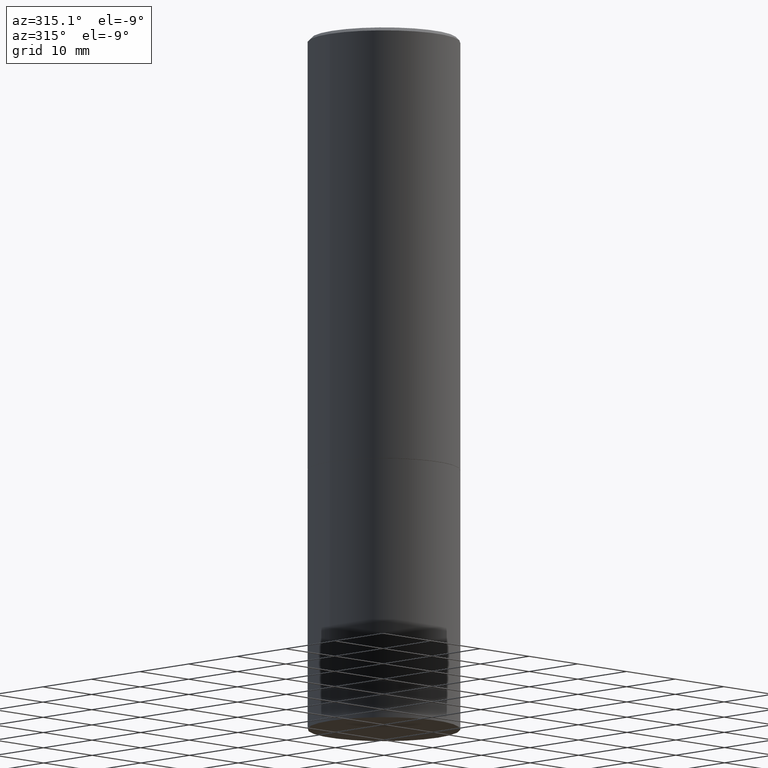
[diagram: clean part render]
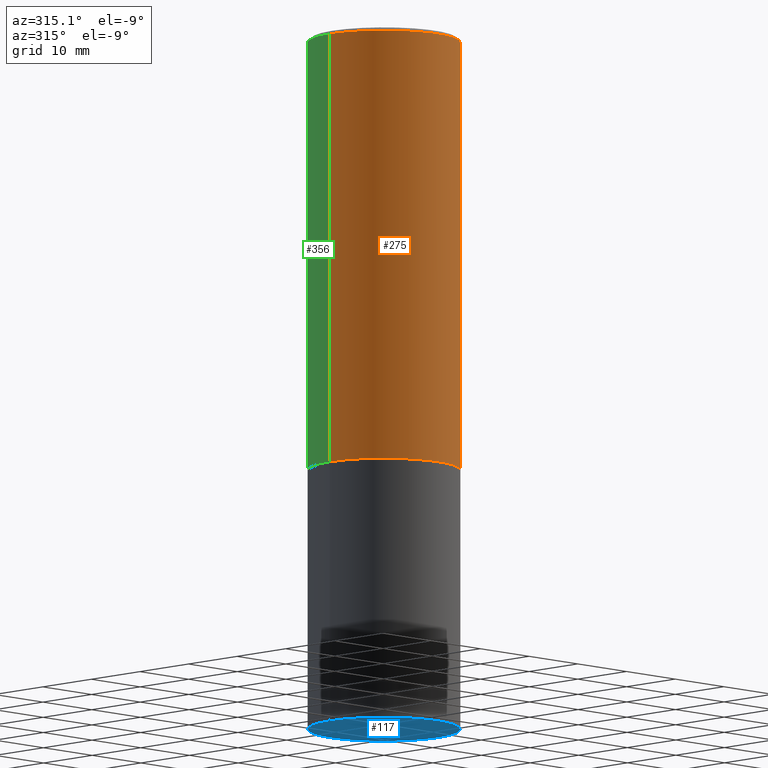
[diagram: same view with three faces highlighted in distinct colors, each labeled with its STEP entity id]
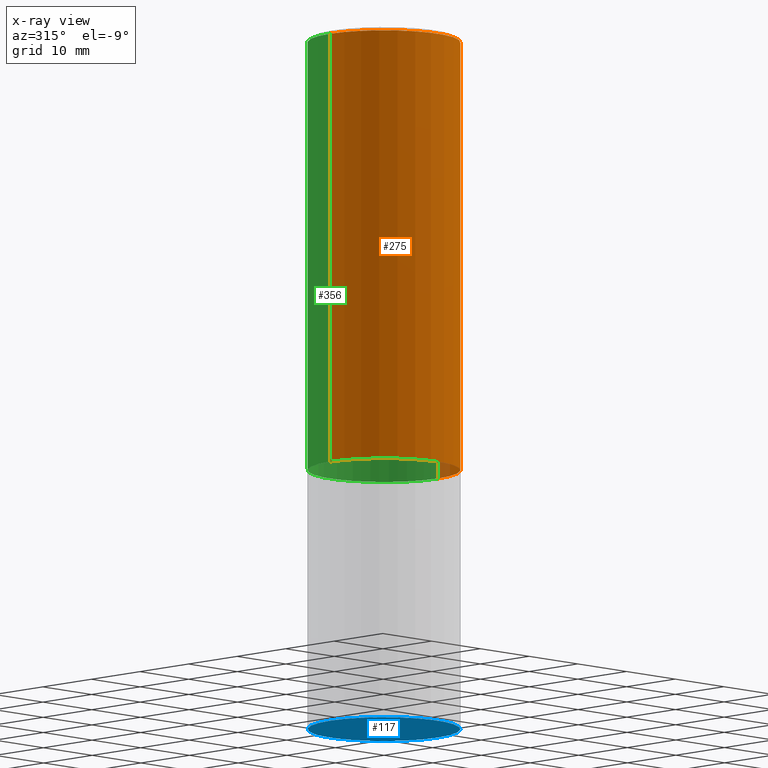
[diagram: x-ray of the same camera — body ghosted, the three highlighted faces saturated]
A machine part, auxiliary view with three faces highlighted in distinct colors.
The next image is the same camera in x-ray (body ghosted, the three faces saturated) — at least one of them is partly hidden behind the body in this view.
Their STEP definitions:

[orange] entity #275 — the highlighted cylindrical surface (partial cylindrical patch) has radius 11.1125 mm, axis along (-0, 0, 1).
#3 = DIRECTION ( 'NONE',  ( -2.445468806185136597E-29, 3.491481338843145583E-15, 1.000000000000000000 ) ) ;
#5 = AXIS2_PLACEMENT_3D ( 'NONE', #123, #152, #31 ) ;
#12 = VERTEX_POINT ( 'NONE', #290 ) ;
#24 = CIRCLE ( 'NONE', #128, 0.4374999999999998335 ) ;
#31 = DIRECTION ( 'NONE',  ( 1.000000000000000000, -6.982962677686266711E-15, 0.000000000000000000 ) ) ;
#36 = CARTESIAN_POINT ( 'NONE',  ( 6.111226546656657010E-29, -8.725211865769021935E-15, -2.499000000000000110 ) ) ;
#46 = LINE ( 'NONE', #269, #295 ) ;
#60 = CYLINDRICAL_SURFACE ( 'NONE', #247, 0.4374999999999997780 ) ;
#61 = VERTEX_POINT ( 'NONE', #131 ) ;
#64 = CARTESIAN_POINT ( 'NONE',  ( 0.4374999999999998335, -1.178025803725676362E-14, -2.499000000000000110 ) ) ;
#67 = VERTEX_POINT ( 'NONE', #221 ) ;
#78 = CARTESIAN_POINT ( 'NONE',  ( 0.4374999999999997780, -3.055046171487740108E-15, 2.133327339410720928E-29 ) ) ;
#99 = EDGE_CURVE ( 'NONE', #255, #61, #333, .T. ) ;
#101 = DIRECTION ( 'NONE',  ( -2.445468806185136877E-29, 3.491481338843145188E-15, 1.000000000000000000 ) ) ;
#123 = CARTESIAN_POINT ( 'NONE',  ( 4.890937612370297681E-31, -6.982962677686324889E-17, -0.02000000000000009756 ) ) ;
#124 = EDGE_LOOP ( 'NONE', ( #355, #179, #287, #213 ) ) ;
#128 = AXIS2_PLACEMENT_3D ( 'NONE', #36, #346, #318 ) ;
#131 = CARTESIAN_POINT ( 'NONE',  ( 0.4374999999999997224, -3.071297500801906385E-15, -0.02000000000000009756 ) ) ;
#152 = DIRECTION ( 'NONE',  ( -2.445468806185136597E-29, 3.491481338843145583E-15, 1.000000000000000000 ) ) ;
#170 = EDGE_CURVE ( 'NONE', #12, #255, #24, .T. ) ;
#179 = ORIENTED_EDGE ( 'NONE', *, *, #170, .T. ) ;
#213 = ORIENTED_EDGE ( 'NONE', *, *, #256, .F. ) ;
#221 = CARTESIAN_POINT ( 'NONE',  ( -0.4374999999999997224, 2.985216544710876416E-15, -0.02000000000000009756 ) ) ;
#237 = FACE_OUTER_BOUND ( 'NONE', #124, .T. ) ;
#239 = DIRECTION ( 'NONE',  ( 1.000000000000000000, -6.982962677686266711E-15, 4.876176775795935793E-29 ) ) ;
#247 = AXIS2_PLACEMENT_3D ( 'NONE', #257, #3, #239 ) ;
#255 = VERTEX_POINT ( 'NONE', #64 ) ;
#256 = EDGE_CURVE ( 'NONE', #67, #61, #341, .T. ) ;
#257 = CARTESIAN_POINT ( 'NONE',  ( 0.000000000000000000, 0.000000000000000000, 0.000000000000000000 ) ) ;
#269 = CARTESIAN_POINT ( 'NONE',  ( -0.4374999999999997780, 3.108624468950436735E-15, -2.152034101986520123E-29 ) ) ;
#274 = DIRECTION ( 'NONE',  ( -2.445468806185136877E-29, 3.491481338843145188E-15, 1.000000000000000000 ) ) ;
#275 = ADVANCED_FACE ( 'NONE', ( #237 ), #60, .T. ) ;
#287 = ORIENTED_EDGE ( 'NONE', *, *, #99, .T. ) ;
#290 = CARTESIAN_POINT ( 'NONE',  ( -0.4374999999999998335, -1.288896277322503515E-15, -2.499000000000000110 ) ) ;
#295 = VECTOR ( 'NONE', #101, 39.37007874015748143 ) ;
#318 = DIRECTION ( 'NONE',  ( 1.000000000000000000, -6.982962677686267499E-15, 0.000000000000000000 ) ) ;
#333 = LINE ( 'NONE', #78, #345 ) ;
#341 = CIRCLE ( 'NONE', #5, 0.4374999999999997224 ) ;
#345 = VECTOR ( 'NONE', #274, 39.37007874015748143 ) ;
#346 = DIRECTION ( 'NONE',  ( -2.445468806185136597E-29, 3.491481338843145583E-15, 1.000000000000000000 ) ) ;
#355 = ORIENTED_EDGE ( 'NONE', *, *, #361, .F. ) ;
#361 = EDGE_CURVE ( 'NONE', #12, #67, #46, .T. ) ;

[blue] entity #117 — the highlighted planar face has unit normal (0, -0, -1).
#21 = DIRECTION ( 'NONE',  ( -1.000000000000000000, 6.982962677686265922E-15, -4.876176775795935793E-29 ) ) ;
#23 = EDGE_CURVE ( 'NONE', #236, #94, #259, .T. ) ;
#42 = DIRECTION ( 'NONE',  ( -2.445468806185136597E-29, 3.491481338843145583E-15, 1.000000000000000000 ) ) ;
#52 = PLANE ( 'NONE',  #312 ) ;
#58 = CARTESIAN_POINT ( 'NONE',  ( 0.4375000000000000000, -1.702097152686032402E-14, -4.000000000000000000 ) ) ;
#73 = CIRCLE ( 'NONE', #157, 0.4375000000000000000 ) ;
#88 = DIRECTION ( 'NONE',  ( 1.000000000000000000, -6.982962677686267499E-15, 0.000000000000000000 ) ) ;
#94 = VERTEX_POINT ( 'NONE', #224 ) ;
#117 = ADVANCED_FACE ( 'NONE', ( #250 ), #52, .T. ) ;
#151 = ORIENTED_EDGE ( 'NONE', *, *, #176, .F. ) ;
#157 = AXIS2_PLACEMENT_3D ( 'NONE', #208, #42, #88 ) ;
#167 = DIRECTION ( 'NONE',  ( 1.000000000000000000, -6.982962677686267499E-15, 0.000000000000000000 ) ) ;
#171 = CARTESIAN_POINT ( 'NONE',  ( 3.055046171487839110E-15, 0.4374999999999860667, -4.000000000000001776 ) ) ;
#176 = EDGE_CURVE ( 'NONE', #94, #236, #73, .T. ) ;
#208 = CARTESIAN_POINT ( 'NONE',  ( 9.781875224740546387E-29, -1.396592535537258233E-14, -4.000000000000000000 ) ) ;
#224 = CARTESIAN_POINT ( 'NONE',  ( -0.4375000000000000000, -8.238689882289784535E-15, -4.000000000000000000 ) ) ;
#227 = AXIS2_PLACEMENT_3D ( 'NONE', #335, #270, #167 ) ;
#236 = VERTEX_POINT ( 'NONE', #58 ) ;
#250 = FACE_OUTER_BOUND ( 'NONE', #366, .T. ) ;
#259 = CIRCLE ( 'NONE', #227, 0.4375000000000000000 ) ;
#270 = DIRECTION ( 'NONE',  ( -2.445468806185136597E-29, 3.491481338843145583E-15, 1.000000000000000000 ) ) ;
#276 = DIRECTION ( 'NONE',  ( 2.438088387897960049E-29, -3.491481338843145188E-15, -1.000000000000000000 ) ) ;
#292 = ORIENTED_EDGE ( 'NONE', *, *, #23, .F. ) ;
#312 = AXIS2_PLACEMENT_3D ( 'NONE', #171, #276, #21 ) ;
#335 = CARTESIAN_POINT ( 'NONE',  ( 9.781875224740546387E-29, -1.396592535537258233E-14, -4.000000000000000000 ) ) ;
#366 = EDGE_LOOP ( 'NONE', ( #292, #151 ) ) ;

[green] entity #356 — the highlighted cylindrical surface (partial cylindrical patch) has radius 11.1125 mm, axis along (-0, 0, 1).
#12 = VERTEX_POINT ( 'NONE', #290 ) ;
#39 = CARTESIAN_POINT ( 'NONE',  ( 4.890937612370297681E-31, -6.982962677686324889E-17, -0.02000000000000009756 ) ) ;
#46 = LINE ( 'NONE', #269, #295 ) ;
#61 = VERTEX_POINT ( 'NONE', #131 ) ;
#64 = CARTESIAN_POINT ( 'NONE',  ( 0.4374999999999998335, -1.178025803725676362E-14, -2.499000000000000110 ) ) ;
#67 = VERTEX_POINT ( 'NONE', #221 ) ;
#78 = CARTESIAN_POINT ( 'NONE',  ( 0.4374999999999997780, -3.055046171487740108E-15, 2.133327339410720928E-29 ) ) ;
#89 = EDGE_CURVE ( 'NONE', #255, #12, #251, .T. ) ;
#95 = DIRECTION ( 'NONE',  ( 1.000000000000000000, -6.982962677686266711E-15, 0.000000000000000000 ) ) ;
#99 = EDGE_CURVE ( 'NONE', #255, #61, #333, .T. ) ;
#100 = EDGE_LOOP ( 'NONE', ( #317, #185, #163, #209 ) ) ;
#101 = DIRECTION ( 'NONE',  ( -2.445468806185136877E-29, 3.491481338843145188E-15, 1.000000000000000000 ) ) ;
#104 = CYLINDRICAL_SURFACE ( 'NONE', #130, 0.4374999999999997780 ) ;
#107 = DIRECTION ( 'NONE',  ( 1.000000000000000000, -6.982962677686267499E-15, 0.000000000000000000 ) ) ;
#108 = DIRECTION ( 'NONE',  ( -2.445468806185136597E-29, 3.491481338843145583E-15, 1.000000000000000000 ) ) ;
#130 = AXIS2_PLACEMENT_3D ( 'NONE', #293, #108, #194 ) ;
#131 = CARTESIAN_POINT ( 'NONE',  ( 0.4374999999999997224, -3.071297500801906385E-15, -0.02000000000000009756 ) ) ;
#163 = ORIENTED_EDGE ( 'NONE', *, *, #230, .F. ) ;
#175 = CIRCLE ( 'NONE', #313, 0.4374999999999997224 ) ;
#185 = ORIENTED_EDGE ( 'NONE', *, *, #361, .T. ) ;
#194 = DIRECTION ( 'NONE',  ( 1.000000000000000000, -6.982962677686266711E-15, 4.876176775795935793E-29 ) ) ;
#196 = CARTESIAN_POINT ( 'NONE',  ( 6.111226546656657010E-29, -8.725211865769021935E-15, -2.499000000000000110 ) ) ;
#209 = ORIENTED_EDGE ( 'NONE', *, *, #99, .F. ) ;
#221 = CARTESIAN_POINT ( 'NONE',  ( -0.4374999999999997224, 2.985216544710876416E-15, -0.02000000000000009756 ) ) ;
#226 = FACE_OUTER_BOUND ( 'NONE', #100, .T. ) ;
#230 = EDGE_CURVE ( 'NONE', #61, #67, #175, .T. ) ;
#242 = DIRECTION ( 'NONE',  ( -2.445468806185136597E-29, 3.491481338843145583E-15, 1.000000000000000000 ) ) ;
#251 = CIRCLE ( 'NONE', #267, 0.4374999999999998335 ) ;
#255 = VERTEX_POINT ( 'NONE', #64 ) ;
#267 = AXIS2_PLACEMENT_3D ( 'NONE', #196, #298, #107 ) ;
#269 = CARTESIAN_POINT ( 'NONE',  ( -0.4374999999999997780, 3.108624468950436735E-15, -2.152034101986520123E-29 ) ) ;
#274 = DIRECTION ( 'NONE',  ( -2.445468806185136877E-29, 3.491481338843145188E-15, 1.000000000000000000 ) ) ;
#290 = CARTESIAN_POINT ( 'NONE',  ( -0.4374999999999998335, -1.288896277322503515E-15, -2.499000000000000110 ) ) ;
#293 = CARTESIAN_POINT ( 'NONE',  ( 0.000000000000000000, 0.000000000000000000, 0.000000000000000000 ) ) ;
#295 = VECTOR ( 'NONE', #101, 39.37007874015748143 ) ;
#298 = DIRECTION ( 'NONE',  ( -2.445468806185136597E-29, 3.491481338843145583E-15, 1.000000000000000000 ) ) ;
#313 = AXIS2_PLACEMENT_3D ( 'NONE', #39, #242, #95 ) ;
#317 = ORIENTED_EDGE ( 'NONE', *, *, #89, .T. ) ;
#333 = LINE ( 'NONE', #78, #345 ) ;
#345 = VECTOR ( 'NONE', #274, 39.37007874015748143 ) ;
#356 = ADVANCED_FACE ( 'NONE', ( #226 ), #104, .T. ) ;
#361 = EDGE_CURVE ( 'NONE', #12, #67, #46, .T. ) ;